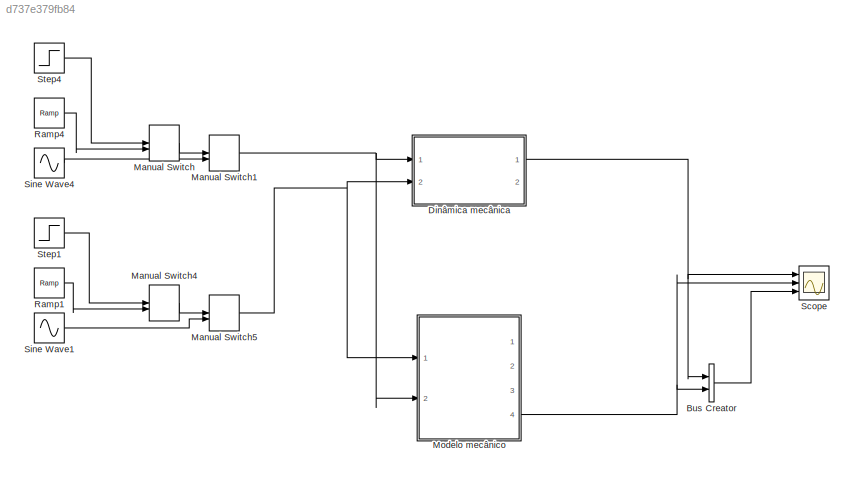
MODEL slx_d737e379fb84
KIND model
BLOCK [BusCreator] Bus Creator
  DisplayOption = bar
  Inputs = 2
  Ports = [2, 1]
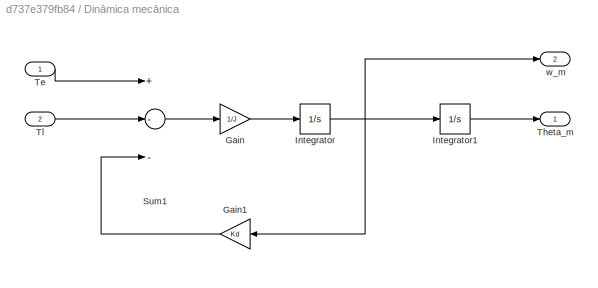
BLOCK [SubSystem] Dinâmica mecânica 
  FunctionWithSeparateData = off
  MaskHideContents = off
  MinAlgLoopOccurrences = off
  Opaque = off
  Ports = [2, 2]
  PropExecContextOutsideSubsystem = off
  RTWSystemCode = Auto
  RequestExecContextInheritance = off
BLOCK [Gain] Dinâmica mecânica /Gain
  Gain = 1/J
  OutDataTypeStr = Inherit: Inherit via internal rule
  ParamDataTypeStr = Inherit: Inherit via internal rule
  SaturateOnIntegerOverflow = off
BLOCK [Gain] Dinâmica mecânica /Gain1
  Gain = Kd
  OutDataTypeStr = Inherit: Inherit via internal rule
  ParamDataTypeStr = Inherit: Inherit via internal rule
  SaturateOnIntegerOverflow = off
BLOCK [Integrator] Dinâmica mecânica /Integrator
  Ports = [1, 1]
BLOCK [Integrator] Dinâmica mecânica /Integrator1
  Ports = [1, 1]
BLOCK [Sum] Dinâmica mecânica /Sum1
  InputSameDT = off
  Inputs = +--
  OutDataTypeStr = Inherit: Inherit via internal rule
  Ports = [3, 1]
  SaturateOnIntegerOverflow = off
BLOCK [Inport] Dinâmica mecânica /Te
  IconDisplay = Port number
BLOCK [Outport] Dinâmica mecânica /Theta_m
  IconDisplay = Port number
BLOCK [Inport] Dinâmica mecânica /Tl
  IconDisplay = Port number
  Port = 2
BLOCK [Outport] Dinâmica mecânica /w_m
  IconDisplay = Port number
  Port = 2
BLOCK [ManualSwitch] Manual Switch
  CurrentSetting = 0
BLOCK [ManualSwitch] Manual Switch1
BLOCK [ManualSwitch] Manual Switch4
BLOCK [ManualSwitch] Manual Switch5
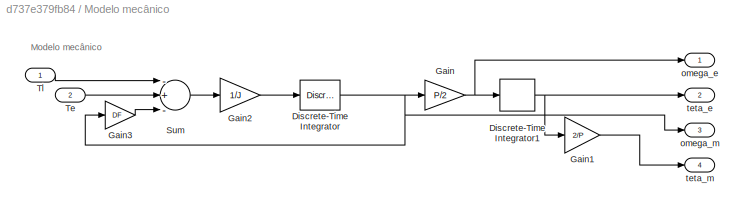
BLOCK [SubSystem] Modelo mecânico
  FunctionWithSeparateData = off
  MaskHideContents = off
  MinAlgLoopOccurrences = off
  Opaque = off
  Ports = [2, 4]
  PropExecContextOutsideSubsystem = off
  RTWSystemCode = Auto
  RequestExecContextInheritance = off
BLOCK [DiscreteIntegrator] Modelo mecânico/Discrete-Time Integrator
  ICPrevOutput = DiscIntNeverNeededParam
  ICPrevScaledInput = DiscIntNeverNeededParam
  Ports = [1, 1]
  SampleTime = Ts
BLOCK [DiscreteIntegrator] Modelo mecânico/Discrete-Time Integrator1
  ICPrevOutput = DiscIntNeverNeededParam
  ICPrevScaledInput = DiscIntNeverNeededParam
  Ports = [1, 1]
  SampleTime = Ts
BLOCK [Gain] Modelo mecânico/Gain
  Gain = P/2
BLOCK [Gain] Modelo mecânico/Gain1
  Gain = 2/P
BLOCK [Gain] Modelo mecânico/Gain2
  Gain = 1/J
BLOCK [Gain] Modelo mecânico/Gain3
  Gain = DF
BLOCK [Sum] Modelo mecânico/Sum
  Inputs = -+-
  Ports = [3, 1]
BLOCK [Inport] Modelo mecânico/Te
  IconDisplay = Port number
  Port = 2
BLOCK [Inport] Modelo mecânico/Tl
  IconDisplay = Port number
BLOCK [Outport] Modelo mecânico/omega_e
  IconDisplay = Port number
BLOCK [Outport] Modelo mecânico/omega_m
  IconDisplay = Port number
  Port = 3
BLOCK [Outport] Modelo mecânico/teta_e
  IconDisplay = Port number
  Port = 2
BLOCK [Outport] Modelo mecânico/teta_m
  IconDisplay = Port number
  Port = 4
BLOCK [Reference] Ramp1  REF=simulink/Sources/Ramp
  Ports = [0, 1]
  SourceBlock = simulink/Sources/Ramp
  SourceType = Ramp
  VectorParams1D = on
  X0 = 0
  slope = 20
  start = 0
BLOCK [Reference] Ramp4  REF=simulink/Sources/Ramp
  Ports = [0, 1]
  SourceBlock = simulink/Sources/Ramp
  SourceType = Ramp
  VectorParams1D = on
  X0 = 0
  slope = 2*pi
  start = 0
BLOCK [Scope] Scope
  DataFormat = StructureWithTime
  Floating = off
  LimitDataPoints = off
  NumInputPorts = 3
  Ports = [3]
  SampleTime = 0
  ShowLegends = off
  TimeRange = 0.5
  YMax = 800000~800000~800000
  YMin = 0~0~0
BLOCK [Sin] Sine Wave1
  Ports = [0, 1]
  SampleTime = 0
BLOCK [Sin] Sine Wave4
  Ports = [0, 1]
  SampleTime = 0
BLOCK [Step] Step1
  After = 2
  SampleTime = 0
  Time = 0.2
BLOCK [Step] Step4
  After = 5
  SampleTime = 0
  Time = 0
ANNOTATION Modelo mecânico: Modelo mecânico
LINE Bus Creator:1 -> Scope:3
LINE Dinâmica mecânica /Gain1:1 -> Dinâmica mecânica /Sum1:3
LINE Dinâmica mecânica /Gain:1 -> Dinâmica mecânica /Integrator:1
LINE Dinâmica mecânica /Integrator1:1 -> Dinâmica mecânica /Theta_m:1
NET Dinâmica mecânica /Integrator:1 -> Dinâmica mecânica /Gain1:1, Dinâmica mecânica /Integrator1:1, Dinâmica mecânica /w_m:1
LINE Dinâmica mecânica /Sum1:1 -> Dinâmica mecânica /Gain:1
LINE Dinâmica mecânica /Te:1 -> Dinâmica mecânica /Sum1:1
LINE Dinâmica mecânica /Tl:1 -> Dinâmica mecânica /Sum1:2
NET Dinâmica mecânica :1 -> Bus Creator:1, Scope:1
NET Manual Switch1:1 -> Dinâmica mecânica :1, Modelo mecânico:2
LINE Manual Switch4:1 -> Manual Switch5:1
NET Manual Switch5:1 -> Dinâmica mecânica :2, Modelo mecânico:1
LINE Manual Switch:1 -> Manual Switch1:1
NET Modelo mecânico/Discrete-Time Integrator1:1 -> Modelo mecânico/Gain1:1, Modelo mecânico/teta_e:1
NET Modelo mecânico/Discrete-Time Integrator:1 -> Modelo mecânico/Gain3:1, Modelo mecânico/Gain:1, Modelo mecânico/omega_m:1
LINE Modelo mecânico/Gain1:1 -> Modelo mecânico/teta_m:1
LINE Modelo mecânico/Gain2:1 -> Modelo mecânico/Discrete-Time Integrator:1
LINE Modelo mecânico/Gain3:1 -> Modelo mecânico/Sum:3
NET Modelo mecânico/Gain:1 -> Modelo mecânico/Discrete-Time Integrator1:1, Modelo mecânico/omega_e:1
LINE Modelo mecânico/Sum:1 -> Modelo mecânico/Gain2:1
LINE Modelo mecânico/Te:1 -> Modelo mecânico/Sum:2
LINE Modelo mecânico/Tl:1 -> Modelo mecânico/Sum:1
NET Modelo mecânico:4 -> Bus Creator:2, Scope:2
LINE Ramp1:1 -> Manual Switch4:2
LINE Ramp4:1 -> Manual Switch:2
LINE Sine Wave1:1 -> Manual Switch5:2
LINE Sine Wave4:1 -> Manual Switch1:2
LINE Step1:1 -> Manual Switch4:1
LINE Step4:1 -> Manual Switch:1
note: NET lines group one-source signal fan-out (src -> all destinations, sorted); 1:1 wires keep LINE
